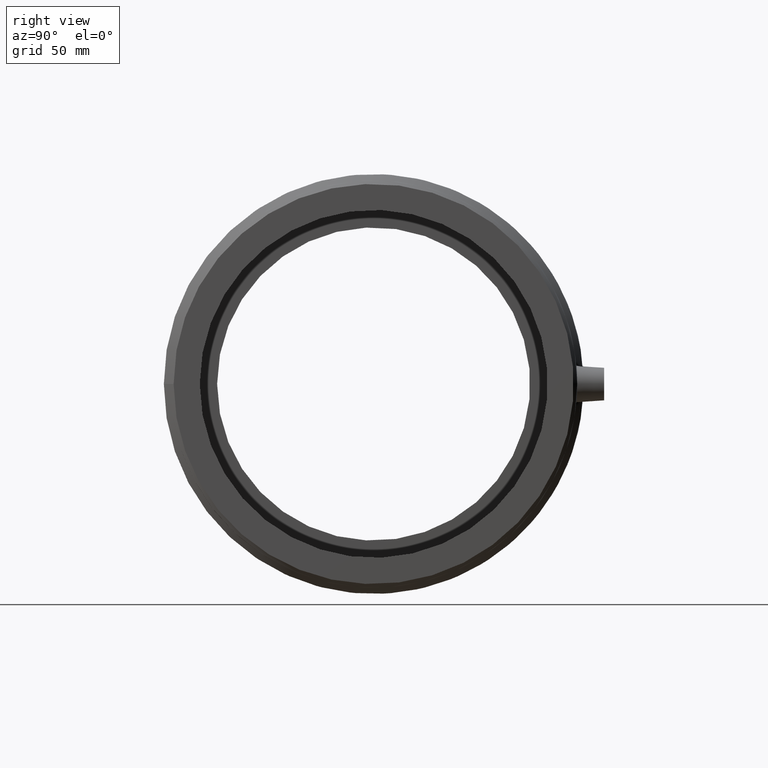
[diagram: clean part render]
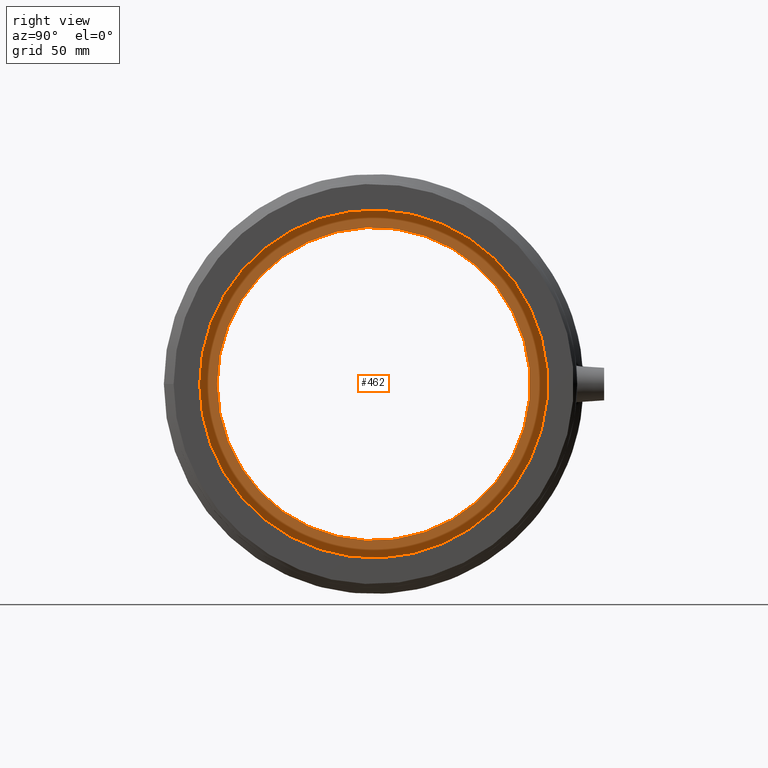
[diagram: same view with one face highlighted and labeled with its STEP entity id]
A machine part, right view. The second image highlights one B-rep face of the part: STEP entity #462.
In plain terms, the highlighted planar face has unit normal (1, 0, 0).
Its self-contained STEP definition (entity closure, byte-faithful):
#54=FACE_BOUND('',#168,.T.);
#109=FACE_OUTER_BOUND('',#167,.T.);
#167=EDGE_LOOP('',(#382));
#168=EDGE_LOOP('',(#383));
#228=CIRCLE('',#524,72.);
#229=CIRCLE('',#526,80.);
#273=VERTEX_POINT('',#885);
#274=VERTEX_POINT('',#888);
#318=EDGE_CURVE('',#273,#273,#228,.T.);
#319=EDGE_CURVE('',#274,#274,#229,.T.);
#382=ORIENTED_EDGE('',*,*,#319,.F.);
#383=ORIENTED_EDGE('',*,*,#318,.T.);
#440=PLANE('',#525);
#462=ADVANCED_FACE('',(#109,#54),#440,.T.);
#524=AXIS2_PLACEMENT_3D('',#886,#644,#645);
#525=AXIS2_PLACEMENT_3D('',#887,#646,#647);
#526=AXIS2_PLACEMENT_3D('',#889,#648,#649);
#644=DIRECTION('center_axis',(-1.,-1.83697019872103E-16,0.));
#645=DIRECTION('ref_axis',(0.,0.,1.));
#646=DIRECTION('center_axis',(1.,1.83697019872103E-16,0.));
#647=DIRECTION('ref_axis',(0.,0.,-1.));
#648=DIRECTION('center_axis',(-1.,-1.83697019872103E-16,0.));
#649=DIRECTION('ref_axis',(0.,0.,1.));
#885=CARTESIAN_POINT('',(3.5,-72.,0.));
#886=CARTESIAN_POINT('Origin',(3.49999999999998,1.7818610927594E-14,0.));
#887=CARTESIAN_POINT('Origin',(3.50000000000004,-80.,0.));
#888=CARTESIAN_POINT('',(3.50000000000004,-80.,0.));
#889=CARTESIAN_POINT('Origin',(3.50000000000001,1.7818610927594E-14,0.));